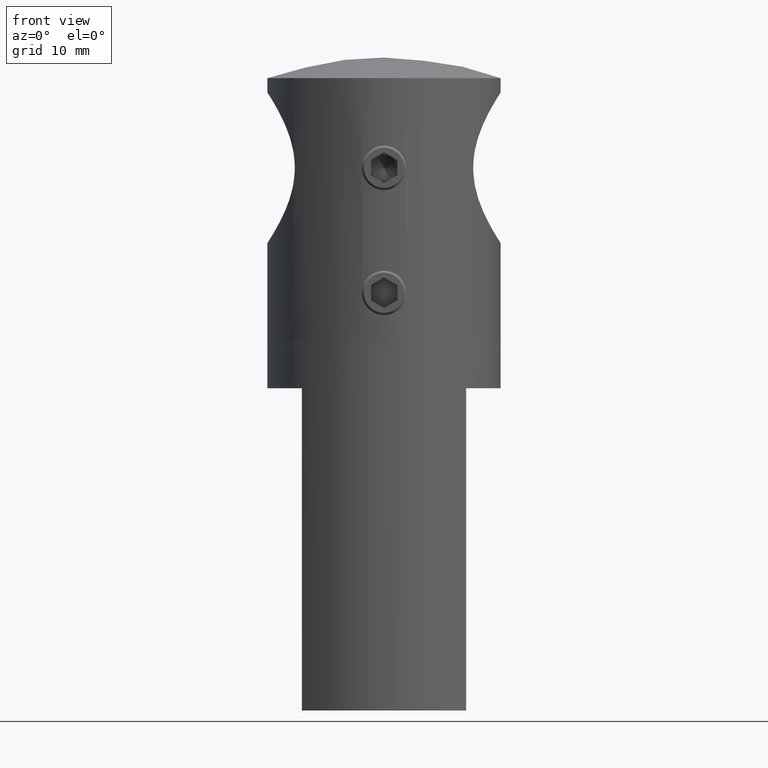
[diagram: clean part render]
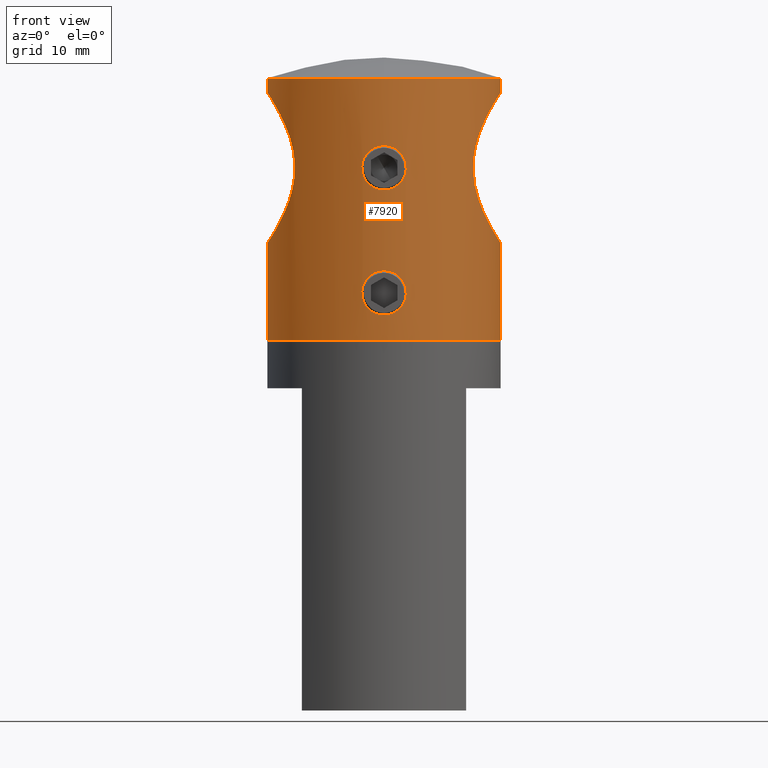
[diagram: same view with one face highlighted and labeled with its STEP entity id]
A machine part, front view. The second image highlights one B-rep face of the part: STEP entity #7920.
In plain terms, the highlighted cylindrical surface (partial cylindrical patch) has radius 11 mm, axis along (0, 0, 1).
Its self-contained STEP definition (entity closure, byte-faithful):
#4 = CARTESIAN_POINT ( 'NONE',  ( 9.618624477816201335, -5.348775577006771087, -1.740722538128044672 ) ) ;
#57 = CARTESIAN_POINT ( 'NONE',  ( 8.974931398539803595, -6.363982882210717840, 6.131617584053833170 ) ) ;
#92 = CARTESIAN_POINT ( 'NONE',  ( 11.00000000000000000, 0.000000000000000000, 13.34999999999999964 ) ) ;
#113 = CARTESIAN_POINT ( 'NONE',  ( 10.39380994311524553, -3.607487159642616792, 9.069572795649069263 ) ) ;
#133 = CARTESIAN_POINT ( 'NONE',  ( -8.401395920298458719, -7.100461038558920635, 2.480575268732210237 ) ) ;
#453 = CARTESIAN_POINT ( 'NONE',  ( -1.347111479062088602E-15, -11.00000000000000000, 11.40899998344316124 ) ) ;
#563 = CARTESIAN_POINT ( 'NONE',  ( 0.000000000000000000, 0.000000000000000000, 11.40899998344315946 ) ) ;
#666 = ORIENTED_EDGE ( 'NONE', *, *, #14136, .T. ) ;
#697 = ORIENTED_EDGE ( 'NONE', *, *, #10156, .F. ) ;
#698 = CARTESIAN_POINT ( 'NONE',  ( 1.821537117031364561, -10.84840705170788766, 4.003903109963400375 ) ) ;
#909 = CARTESIAN_POINT ( 'NONE',  ( 2.086544399319953946, -10.80032733427251301, -9.124117914040203559 ) ) ;
#1026 = CARTESIAN_POINT ( 'NONE',  ( 2.099852312276103472, -10.79771366026968415, -8.571537326236922993 ) ) ;
#1046 = AXIS2_PLACEMENT_3D ( 'NONE', #6387, #4910, #8809 ) ;
#1101 = CARTESIAN_POINT ( 'NONE',  ( -1.280964861485028194, -10.92576216311739223, 1.280287698541706209 ) ) ;
#1255 = CARTESIAN_POINT ( 'NONE',  ( -0.5446589775677495027, -10.98733100277329910, 0.9172348009270533398 ) ) ;
#1261 = CARTESIAN_POINT ( 'NONE',  ( 8.442630690861324894, -7.052444570720942885, 3.898411085082026606 ) ) ;
#1311 = CARTESIAN_POINT ( 'NONE',  ( 9.616002296458887599, -5.353745576237064263, 7.635526583866741213 ) ) ;
#1315 = VERTEX_POINT ( 'NONE', #13797 ) ;
#1366 = CARTESIAN_POINT ( 'NONE',  ( 9.129417169663545550, -6.143529132884216537, 6.537657775010733197 ) ) ;
#1404 = DIRECTION ( 'NONE',  ( -0.000000000000000000, -0.000000000000000000, 1.000000000000000000 ) ) ;
#1604 = CARTESIAN_POINT ( 'NONE',  ( 0.000000000000000000, 0.000000000000000000, 11.40899998344315946 ) ) ;
#1621 = CARTESIAN_POINT ( 'NONE',  ( -10.52575241710548859, -3.202216625068708300, -3.391089961993354329 ) ) ;
#1652 = CARTESIAN_POINT ( 'NONE',  ( 10.93731957707322699, -1.195986482285178898, 9.952594027835869994 ) ) ;
#1836 = CARTESIAN_POINT ( 'NONE',  ( -10.32239293031569893, -3.806475483660659798, -3.047740651979198745 ) ) ;
#1940 = EDGE_CURVE ( 'NONE', #1315, #4395, #2028, .T. ) ;
#1972 = EDGE_LOOP ( 'NONE', ( #12308, #9873 ) ) ;
#2028 = CIRCLE ( 'NONE', #1046, 10.99999999999999822 ) ;
#2104 = ORIENTED_EDGE ( 'NONE', *, *, #16732, .F. ) ;
#2132 = ORIENTED_EDGE ( 'NONE', *, *, #8147, .T. ) ;
#2202 = CARTESIAN_POINT ( 'NONE',  ( 0.6805201624990464548, -10.97965935485003186, -10.84137980455565042 ) ) ;
#2314 = CARTESIAN_POINT ( 'NONE',  ( 2.571760389900062892E-16, -11.00000000000000000, -6.750000000000007105 ) ) ;
#2399 = CARTESIAN_POINT ( 'NONE',  ( -2.100053216031374959, -10.79767458728002794, 3.086506065059753556 ) ) ;
#2433 = CARTESIAN_POINT ( 'NONE',  ( 1.886162589979819337, -10.83721750847613130, -7.916506630239598330 ) ) ;
#2462 = CARTESIAN_POINT ( 'NONE',  ( -0.1390956088270639268, -11.00000000000000355, 0.8500000000000096367 ) ) ;
#2520 = CARTESIAN_POINT ( 'NONE',  ( 10.53307072462165728, -3.201624537633624978, -3.404223964451839279 ) ) ;
#2578 = CARTESIAN_POINT ( 'NONE',  ( 10.84708644371761288, -1.886754462171442714, -3.911095464105312391 ) ) ;
#2608 = CARTESIAN_POINT ( 'NONE',  ( 1.992617978944655199, -10.81814800521910946, 2.272995301701041360 ) ) ;
#2637 = VERTEX_POINT ( 'NONE', #2314 ) ;
#2638 = CARTESIAN_POINT ( 'NONE',  ( 8.412743936715996185, -7.087084310408757304, 2.459628915191882204 ) ) ;
#2655 = CARTESIAN_POINT ( 'NONE',  ( -1.678491383517868085, -10.87293373824765830, -10.14126275157735968 ) ) ;
#2685 = CARTESIAN_POINT ( 'NONE',  ( 8.979283315825179912, -6.357838222277258922, -0.2435410804395544970 ) ) ;
#2706 = CARTESIAN_POINT ( 'NONE',  ( -10.32472976803014930, -3.800110672842702986, 8.951753332510669736 ) ) ;
#2707 = CARTESIAN_POINT ( 'NONE',  ( -2.099893092055966193, -10.79770572917052718, -9.125460824406994575 ) ) ;
#2754 = CARTESIAN_POINT ( 'NONE',  ( -8.443597084180385792, -7.051281678532665964, 1.994352074215531401 ) ) ;
#2938 = CARTESIAN_POINT ( 'NONE',  ( -10.96809102140170111, -0.9617749170238371059, -4.100854930168572388 ) ) ;
#2991 = CARTESIAN_POINT ( 'NONE',  ( -8.776862255579368721, -6.631681787917126591, 0.4035639609908138192 ) ) ;
#3044 = B_SPLINE_CURVE_WITH_KNOTS ( 'NONE', 3,
 ( #4191, #10597, #13502, #11917, #9356, #5458, #10709, #8143, #5523, #8028, #2706, #7922, #3958, #13272, #9305, #5287, #13379, #6644, #7970, #13325, #14661, #6700, #16000, #133, #2754, #12035, #4486, #12276, #2991, #8268, #8210, #10872, #4310, #6883, #9784, #1836, #9542, #1621, #12456, #13672, #9666, #13615, #14908, #2938, #5821, #5703 ),
 .UNSPECIFIED., .F., .F.,
 ( 4, 2, 2, 2, 2, 2, 2, 2, 2, 2, 2, 2, 2, 2, 2, 2, 2, 2, 2, 2, 2, 2, 4 ),
 ( 0.02288581673804612054, 0.02359992896935396781, 0.02431404120066181507, 0.02574226566327750612, 0.02645637789458535338, 0.02717049012589320064, 0.02788460235720104791, 0.02859871458850889517, 0.03002693905112459316, 0.03145516351374029462, 0.03288338797635599609, 0.03431161243897169755, 0.03573983690158739901, 0.03645394913289524974, 0.03716806136420310047, 0.03859628582681880193, 0.04002451028943450340, 0.04145273475205020486, 0.04216684698335804865, 0.04288095921466589938, 0.04359507144597375011, 0.04430918367728160084, 0.04573740813989730231 ),
 .UNSPECIFIED. ) ;
#3160 = LINE ( 'NONE', #8526, #14180 ) ;
#3351 = CARTESIAN_POINT ( 'NONE',  ( 2.571760389900062892E-16, -11.00000000000000000, 5.049999999999996270 ) ) ;
#3461 = EDGE_CURVE ( 'NONE', #4395, #17034, #3160, .T. ) ;
#3467 = VERTEX_POINT ( 'NONE', #15623 ) ;
#3501 = CARTESIAN_POINT ( 'NONE',  ( -2.362977988588258427E-16, -11.00000000000000000, -10.94999999999999396 ) ) ;
#3504 = CARTESIAN_POINT ( 'NONE',  ( 1.669436658925245176, -10.87285216813439348, -7.568715302616171314 ) ) ;
#3588 = CARTESIAN_POINT ( 'NONE',  ( -0.1372272541832250670, -10.99999999999999822, 5.049999999999997158 ) ) ;
#3616 = CARTESIAN_POINT ( 'NONE',  ( 1.823074656995022469, -10.84815027761956152, -9.901320352071532938 ) ) ;
#3686 = CARTESIAN_POINT ( 'NONE',  ( 2.033171115251354522, -10.81050198991124489, 2.406839455373666503 ) ) ;
#3703 = DIRECTION ( 'NONE',  ( -0.000000000000000000, -0.000000000000000000, 1.000000000000000000 ) ) ;
#3710 = CARTESIAN_POINT ( 'NONE',  ( -1.387184039977853223, -10.91262725146888002, 4.532652967527634580 ) ) ;
#3745 = CARTESIAN_POINT ( 'NONE',  ( 0.2763455751302169583, -10.99736469940980932, 0.8636779842611002067 ) ) ;
#3757 = VERTEX_POINT ( 'NONE', #11725 ) ;
#3770 = CARTESIAN_POINT ( 'NONE',  ( -1.052913710800888802, -10.95009235298837069, 1.127863105140557654 ) ) ;
#3797 = CARTESIAN_POINT ( 'NONE',  ( -1.281464611760895655, -10.92569898063905320, -7.180710176465953332 ) ) ;
#3812 = VECTOR ( 'NONE', #7942, 1000.000000000000000 ) ;
#3836 = CARTESIAN_POINT ( 'NONE',  ( 10.10423413395051107, -4.367072611774283075, -2.666970970561548970 ) ) ;
#3908 = CARTESIAN_POINT ( 'NONE',  ( -0.5464674534888682711, -10.98724733397126130, -6.817684681884775166 ) ) ;
#3958 = CARTESIAN_POINT ( 'NONE',  ( -10.10150593543633057, -4.358483782773000748, 8.559384914093561392 ) ) ;
#3971 = EDGE_CURVE ( 'NONE', #17034, #6548, #9528, .T. ) ;
#4191 = CARTESIAN_POINT ( 'NONE',  ( -11.00000000000000000, 1.347003868691084210E-15, 10.05000000000000426 ) ) ;
#4229 = DIRECTION ( 'NONE',  ( -0.000000000000000000, -0.000000000000000000, 1.000000000000000000 ) ) ;
#4310 = CARTESIAN_POINT ( 'NONE',  ( -9.616035461838839282, -5.353436411750736035, -1.735446169069210898 ) ) ;
#4395 = VERTEX_POINT ( 'NONE', #16262 ) ;
#4486 = CARTESIAN_POINT ( 'NONE',  ( -8.606495603050264620, -6.850983868871864502, 1.071488891998424453 ) ) ;
#4728 = ORIENTED_EDGE ( 'NONE', *, *, #12679, .T. ) ;
#4745 = VERTEX_POINT ( 'NONE', #3501 ) ;
#4771 = CARTESIAN_POINT ( 'NONE',  ( 2.571760389900062892E-16, -11.00000000000000000, -6.750000000000007105 ) ) ;
#4910 = DIRECTION ( 'NONE',  ( -0.000000000000000000, -0.000000000000000000, 1.000000000000000000 ) ) ;
#4921 = B_SPLINE_CURVE_WITH_KNOTS ( 'NONE', 3,
 ( #17105, #15952, #13100, #5123, #13274, #14605, #9135, #6421, #17157, #2655, #10479, #13044, #2707, #5062, #6646, #10654, #15724, #6531, #7972, #14373, #11747, #10599, #3797, #14547, #9252, #11864, #3908, #11978, #7759, #13218 ),
 .UNSPECIFIED., .F., .F.,
 ( 4, 2, 2, 2, 2, 2, 2, 2, 2, 2, 2, 2, 2, 2, 4 ),
 ( 2.823141662739470017E-19, 0.0004112924916772679696, 0.0008225849833545358309, 0.001233877475031803801, 0.001645169966709071662, 0.002467754950063607601, 0.003290339933418143323, 0.003701632425095408366, 0.004112924916772673842, 0.004524217408449939318, 0.004935509900127204794, 0.005346802391804470270, 0.005758094883481735746, 0.006169387375159001222, 0.006580679866836266698 ),
 .UNSPECIFIED. ) ;
#4948 = CARTESIAN_POINT ( 'NONE',  ( -11.00000000000000000, 1.347111479062088405E-15, 11.40899998344315946 ) ) ;
#4973 = CARTESIAN_POINT ( 'NONE',  ( -0.6782223692844864260, -10.97981120730159255, 0.9577771028039815393 ) ) ;
#5001 = CARTESIAN_POINT ( 'NONE',  ( 0.5512897161058580853, -10.98910036636056553, -6.805259910810680601 ) ) ;
#5007 = CARTESIAN_POINT ( 'NONE',  ( 1.823074656995022025, -10.84815027761955974, 1.898679647928469105 ) ) ;
#5033 = CARTESIAN_POINT ( 'NONE',  ( -1.054284791542651423, -10.94995586041581070, 4.771308223358065703 ) ) ;
#5062 = CARTESIAN_POINT ( 'NONE',  ( -2.100053216031374959, -10.79767458728002616, -8.713493934940252927 ) ) ;
#5068 = CARTESIAN_POINT ( 'NONE',  ( 0.1390600104966670247, -11.00000000000000355, 0.8500000000000098588 ) ) ;
#5123 = CARTESIAN_POINT ( 'NONE',  ( -0.5446589775677500578, -10.98733100277329555, -10.88276519907294571 ) ) ;
#5148 = CARTESIAN_POINT ( 'NONE',  ( -0.9313145936048172757, -10.96124348274782889, 4.837205184321649476 ) ) ;
#5154 = CARTESIAN_POINT ( 'NONE',  ( 8.600628163531990111, -6.858884507550863319, 1.055644347648836190 ) ) ;
#5287 = CARTESIAN_POINT ( 'NONE',  ( -9.615757203055357749, -5.354006948956338441, 7.634920387581043855 ) ) ;
#5323 = CARTESIAN_POINT ( 'NONE',  ( 8.715072871429502044, -6.712320979507743424, 5.275840141762283331 ) ) ;
#5458 = CARTESIAN_POINT ( 'NONE',  ( -10.84607314739752049, -1.893529277578472003, 9.809501551777522366 ) ) ;
#5523 = CARTESIAN_POINT ( 'NONE',  ( -10.52670800807837637, -3.199048539657768586, 9.292672148448730240 ) ) ;
#5703 = CARTESIAN_POINT ( 'NONE',  ( -11.00000000000000000, -2.600742020527134374E-16, -4.149999999999996803 ) ) ;
#5704 = LINE ( 'NONE', #92, #10493 ) ;
#5770 = VERTEX_POINT ( 'NONE', #453 ) ;
#5807 = CARTESIAN_POINT ( 'NONE',  ( 2.571760389900062892E-16, -11.00000000000000000, 5.049999999999996270 ) ) ;
#5821 = CARTESIAN_POINT ( 'NONE',  ( -11.00000000000000355, -0.4837421286456314862, -4.149999999999998579 ) ) ;
#5924 = CARTESIAN_POINT ( 'NONE',  ( 0.9304780754643300344, -10.96130796731566015, 4.837572818975671929 ) ) ;
#6126 = CARTESIAN_POINT ( 'NONE',  ( 1.580893697814894416, -10.88624481241956587, -7.460932840332700877 ) ) ;
#6141 = LINE ( 'NONE', #12125, #15513 ) ;
#6191 = CARTESIAN_POINT ( 'NONE',  ( 2.044985657725164607, -10.80877440911514853, -8.298537935482235284 ) ) ;
#6207 = FACE_OUTER_BOUND ( 'NONE', #7282, .T. ) ;
#6307 = CARTESIAN_POINT ( 'NONE',  ( 1.582363275506016631, -10.88602800881645827, -10.23735848235642543 ) ) ;
#6332 = CARTESIAN_POINT ( 'NONE',  ( -1.669681883603846284, -10.87281380345939041, 4.230948821869228382 ) ) ;
#6366 = CARTESIAN_POINT ( 'NONE',  ( 1.387222290316447948, -10.91261496237138751, -7.267487195910812048 ) ) ;
#6371 = CARTESIAN_POINT ( 'NONE',  ( 1.059293483344628584, -10.95180379100163393, 1.116232788388055841 ) ) ;
#6387 = CARTESIAN_POINT ( 'NONE',  ( 0.000000000000000000, 0.000000000000000000, -13.34999999999999964 ) ) ;
#6421 = CARTESIAN_POINT ( 'NONE',  ( -1.280964861485029527, -10.92576216311739046, -10.51971230145830027 ) ) ;
#6503 = CARTESIAN_POINT ( 'NONE',  ( -1.388683799784667494, -10.91242698277668133, 1.368788278327566443 ) ) ;
#6510 = CARTESIAN_POINT ( 'NONE',  ( 8.453846490142611358, -7.038004268874612279, 1.983706186007275107 ) ) ;
#6531 = CARTESIAN_POINT ( 'NONE',  ( -1.887222682679247754, -10.83703208814377028, -7.918663948588950063 ) ) ;
#6548 = VERTEX_POINT ( 'NONE', #16310 ) ;
#6623 = CARTESIAN_POINT ( 'NONE',  ( 9.945067796824554662, -4.714123835347594493, -2.378162400668189846 ) ) ;
#6644 = CARTESIAN_POINT ( 'NONE',  ( -9.130304730956144255, -6.142195407637386140, 6.539864414270356363 ) ) ;
#6646 = CARTESIAN_POINT ( 'NONE',  ( -2.086312396705570560, -10.80037267411901958, -8.573968802188863592 ) ) ;
#6680 = EDGE_CURVE ( 'NONE', #12255, #10523, #14107, .T. ) ;
#6700 = CARTESIAN_POINT ( 'NONE',  ( -8.443332468633530041, -7.051628053820479636, 3.905581076693656950 ) ) ;
#6776 = VERTEX_POINT ( 'NONE', #4948 ) ;
#6883 = CARTESIAN_POINT ( 'NONE',  ( -9.942885241981041844, -4.718734203448654796, -2.374118211977240378 ) ) ;
#6922 = CARTESIAN_POINT ( 'NONE',  ( 10.58769266743697912, -2.991742537915969002, 9.393172667929700737 ) ) ;
#7030 = CARTESIAN_POINT ( 'NONE',  ( 11.00000000000000000, 1.076104219691452343E-19, 10.05000000000000426 ) ) ;
#7143 = CIRCLE ( 'NONE', #9095, 11.00000000000000000 ) ;
#7207 = CARTESIAN_POINT ( 'NONE',  ( 0.5512897161058575302, -10.98910036636056731, 4.994740089189320997 ) ) ;
#7260 = CARTESIAN_POINT ( 'NONE',  ( 1.281726110789820350, -10.92567622053587151, 4.619161128042578390 ) ) ;
#7282 = EDGE_LOOP ( 'NONE', ( #9105, #8922, #12102, #15797, #4728, #697, #2104, #13027, #2132 ) ) ;
#7347 = AXIS2_PLACEMENT_3D ( 'NONE', #1604, #4229, #14950 ) ;
#7470 = CARTESIAN_POINT ( 'NONE',  ( 1.053044886988720785, -10.95008306658220043, -7.027908575170917160 ) ) ;
#7591 = CARTESIAN_POINT ( 'NONE',  ( 1.281726110789821016, -10.92567622053587151, -7.180838871957424985 ) ) ;
#7623 = CARTESIAN_POINT ( 'NONE',  ( -0.2766146211369606700, -10.99735036301719404, 5.036244612058148995 ) ) ;
#7647 = CARTESIAN_POINT ( 'NONE',  ( 2.100073399048833611, -10.79767066196426839, -8.987557323033358969 ) ) ;
#7653 = CARTESIAN_POINT ( 'NONE',  ( 2.099852312276103916, -10.79771366026968593, 3.228462673763080382 ) ) ;
#7759 = CARTESIAN_POINT ( 'NONE',  ( -0.1372272541832249559, -11.00000000000000178, -6.750000000000007105 ) ) ;
#7899 = CARTESIAN_POINT ( 'NONE',  ( 9.130374757092061699, -6.142080975597357551, -0.6400208882153017864 ) ) ;
#7920 = ADVANCED_FACE ( 'NONE', ( #6207, #12015, #14730 ), #8490, .T. ) ;
#7922 = CARTESIAN_POINT ( 'NONE',  ( -10.17809414954137814, -4.176994779955133019, 8.695833168338905850 ) ) ;
#7942 = DIRECTION ( 'NONE',  ( -0.000000000000000000, -0.000000000000000000, 1.000000000000000000 ) ) ;
#7970 = CARTESIAN_POINT ( 'NONE',  ( -8.975770888038764994, -6.362779008328995012, 6.133770479453402480 ) ) ;
#7972 = CARTESIAN_POINT ( 'NONE',  ( -1.821584086453984064, -10.84839845383223711, -7.796197887333372378 ) ) ;
#8008 = CARTESIAN_POINT ( 'NONE',  ( 8.558781598506170596, -6.910210156023721240, 4.597910829485651441 ) ) ;
#8028 = CARTESIAN_POINT ( 'NONE',  ( -10.39478236017299828, -3.604718120888807942, 9.071226087209128153 ) ) ;
#8052 = CARTESIAN_POINT ( 'NONE',  ( -11.00000000000000000, 1.347111479062088405E-15, 13.34999999999999964 ) ) ;
#8143 = CARTESIAN_POINT ( 'NONE',  ( -10.58881885139752121, -2.987707908590936157, 9.395019652354941186 ) ) ;
#8147 = EDGE_CURVE ( 'NONE', #15239, #3467, #3044, .T. ) ;
#8177 = DIRECTION ( 'NONE',  ( -0.000000000000000000, -0.000000000000000000, 1.000000000000000000 ) ) ;
#8210 = CARTESIAN_POINT ( 'NONE',  ( -9.127971041129400831, -6.145627881455133057, -0.6339189038262011966 ) ) ;
#8268 = CARTESIAN_POINT ( 'NONE',  ( -8.976446890868427175, -6.361875413259864942, -0.2360164114432382054 ) ) ;
#8294 = CARTESIAN_POINT ( 'NONE',  ( 1.033756478894157726E-16, -11.00000000000000000, 0.8500000000000094147 ) ) ;
#8340 = DIRECTION ( 'NONE',  ( -0.000000000000000000, -0.000000000000000000, 1.000000000000000000 ) ) ;
#8490 = CYLINDRICAL_SURFACE ( 'NONE', #11373, 11.00000000000000000 ) ;
#8526 = CARTESIAN_POINT ( 'NONE',  ( 11.00000000000000000, 0.000000000000000000, 13.34999999999999964 ) ) ;
#8534 = CARTESIAN_POINT ( 'NONE',  ( 1.053044886988720119, -10.95008306658220221, 4.772091424829087103 ) ) ;
#8591 = CARTESIAN_POINT ( 'NONE',  ( 1.669436658925246952, -10.87285216813439526, 4.231284697383829396 ) ) ;
#8788 = CARTESIAN_POINT ( 'NONE',  ( 1.821537117031363229, -10.84840705170788588, -7.796096890036602112 ) ) ;
#8809 = DIRECTION ( 'NONE',  ( 1.000000000000000000, 0.000000000000000000, 0.000000000000000000 ) ) ;
#8922 = ORIENTED_EDGE ( 'NONE', *, *, #1940, .T. ) ;
#8958 = CARTESIAN_POINT ( 'NONE',  ( 1.059293483344629250, -10.95180379100163215, -10.68376721161194887 ) ) ;
#8965 = CARTESIAN_POINT ( 'NONE',  ( 0.6805201624990456777, -10.97965935485003186, 0.9586201954443488438 ) ) ;
#8991 = CARTESIAN_POINT ( 'NONE',  ( 1.033756478894157726E-16, -11.00000000000000000, 0.8500000000000094147 ) ) ;
#9020 = CARTESIAN_POINT ( 'NONE',  ( 0.9304780754643304785, -10.96130796731565660, -6.962427181024332334 ) ) ;
#9028 = CARTESIAN_POINT ( 'NONE',  ( 0.5474279575042518831, -10.98720709917046179, 0.9179003317766127878 ) ) ;
#9095 = AXIS2_PLACEMENT_3D ( 'NONE', #563, #8340, #16258 ) ;
#9105 = ORIENTED_EDGE ( 'NONE', *, *, #12029, .F. ) ;
#9135 = CARTESIAN_POINT ( 'NONE',  ( -1.052913710800889469, -10.95009235298837069, -10.67213689485944528 ) ) ;
#9141 = CARTESIAN_POINT ( 'NONE',  ( 2.100073399048834055, -10.79767066196427017, 2.812442676966646182 ) ) ;
#9222 = CARTESIAN_POINT ( 'NONE',  ( 8.606538236366738204, -6.850930423834669547, 4.828706370018758243 ) ) ;
#9252 = CARTESIAN_POINT ( 'NONE',  ( -0.9313145936048171647, -10.96124348274783245, -6.962794815678355675 ) ) ;
#9305 = CARTESIAN_POINT ( 'NONE',  ( -9.861603752338668372, -4.876557769703527612, 8.115283310778369952 ) ) ;
#9336 = CARTESIAN_POINT ( 'NONE',  ( 9.449343857318062589, -5.639069846216668402, 7.287641039399408882 ) ) ;
#9356 = CARTESIAN_POINT ( 'NONE',  ( -10.93782023536322079, -1.191544149335223679, 9.953376057742175931 ) ) ;
#9396 = CARTESIAN_POINT ( 'NONE',  ( 10.75628781949875012, -2.344834943863306265, -3.767760858830070170 ) ) ;
#9458 = CARTESIAN_POINT ( 'NONE',  ( 10.96096262931236787, -0.9564599396693918010, 9.989392560758147965 ) ) ;
#9525 = CARTESIAN_POINT ( 'NONE',  ( 11.00000000000000000, -0.2387790642552299336, 10.05000000000000426 ) ) ;
#9528 = B_SPLINE_CURVE_WITH_KNOTS ( 'NONE', 3,
 ( #13132, #13359, #10515, #2578, #9396, #2520, #14524, #3836, #6623, #4, #15871, #7899, #2685, #11777, #5154, #14472, #6510, #2638, #15811, #17136, #1261, #8008, #9222, #5323, #15986, #57, #1366, #9336, #1311, #10575, #11896, #14643, #113, #14883, #6922, #13592, #9584, #1652, #9458, #14947, #9525, #7030 ),
 .UNSPECIFIED., .F., .F.,
 ( 4, 2, 2, 2, 2, 2, 2, 2, 2, 2, 2, 2, 2, 2, 2, 2, 2, 2, 2, 2, 4 ),
 ( 2.518951915932314154E-19, 0.001430363546127882100, 0.002860727092255764201, 0.004291090638383645434, 0.005721454184511529269, 0.007151817730639410502, 0.008582181276767292602, 0.01001254482289517383, 0.01072772659595911705, 0.01144290836902305854, 0.01287327191515094324, 0.01358845368821488472, 0.01430363546127882274, 0.01573399900740670571, 0.01716436255353458867, 0.01859472609966246817, 0.01930990787272640966, 0.02002508964579034767, 0.02145545319191823411, 0.02217063496498217559, 0.02288581673804612054 ),
 .UNSPECIFIED. ) ;
#9542 = CARTESIAN_POINT ( 'NONE',  ( -10.39345552336475542, -3.608564471352442737, -3.168976685365959334 ) ) ;
#9584 = CARTESIAN_POINT ( 'NONE',  ( 10.84562008106580322, -1.895757854931589659, 9.808784826296198744 ) ) ;
#9631 = EDGE_LOOP ( 'NONE', ( #12163, #666 ) ) ;
#9666 = CARTESIAN_POINT ( 'NONE',  ( -10.74909639000340000, -2.347216804563205361, -3.754929426525466685 ) ) ;
#9784 = CARTESIAN_POINT ( 'NONE',  ( -10.10162466040127960, -4.372800576579909837, -2.662237455945417608 ) ) ;
#9873 = ORIENTED_EDGE ( 'NONE', *, *, #6680, .T. ) ;
#9912 = CIRCLE ( 'NONE', #7347, 11.00000000000000000 ) ;
#9935 = CARTESIAN_POINT ( 'NONE',  ( 1.886162589979820670, -10.83721750847613308, 3.883493369760401048 ) ) ;
#10140 = CARTESIAN_POINT ( 'NONE',  ( 1.887471627070406832, -10.83698775166991801, -9.780759167849852886 ) ) ;
#10156 = EDGE_CURVE ( 'NONE', #5770, #3757, #9912, .T. ) ;
#10255 = CARTESIAN_POINT ( 'NONE',  ( 1.992617978944654755, -10.81814800521910769, -9.527004698298963348 ) ) ;
#10273 = DIRECTION ( 'NONE',  ( -0.000000000000000000, -0.000000000000000000, 1.000000000000000000 ) ) ;
#10337 = CARTESIAN_POINT ( 'NONE',  ( 0.000000000000000000, 0.000000000000000000, 13.34999999999999964 ) ) ;
#10344 = CARTESIAN_POINT ( 'NONE',  ( -0.9324088270258900080, -10.96115201561714336, 1.063322647193176040 ) ) ;
#10377 = CARTESIAN_POINT ( 'NONE',  ( 2.086544399319952170, -10.80032733427250946, 2.675882085959798040 ) ) ;
#10403 = CARTESIAN_POINT ( 'NONE',  ( -1.678491383517867419, -10.87293373824765652, 1.658737248422646360 ) ) ;
#10479 = CARTESIAN_POINT ( 'NONE',  ( -1.834825977199898484, -10.84641652567069059, -9.907448185350292036 ) ) ;
#10493 = VECTOR ( 'NONE', #1404, 1000.000000000000000 ) ;
#10515 = CARTESIAN_POINT ( 'NONE',  ( 10.96816309321517835, -0.9583971403540449963, -4.100953714885069878 ) ) ;
#10523 = VERTEX_POINT ( 'NONE', #8294 ) ;
#10575 = CARTESIAN_POINT ( 'NONE',  ( 9.946061679111865672, -4.712318849131812648, 8.280178432971723623 ) ) ;
#10597 = CARTESIAN_POINT ( 'NONE',  ( -11.00000000000000178, -0.2384219743665853819, 10.05000000000000426 ) ) ;
#10599 = CARTESIAN_POINT ( 'NONE',  ( -1.387184039977853667, -10.91262725146888357, -7.267347032472368795 ) ) ;
#10654 = CARTESIAN_POINT ( 'NONE',  ( -2.032533148121902666, -10.81062247598581649, -8.304379581945411815 ) ) ;
#10709 = CARTESIAN_POINT ( 'NONE',  ( -10.75701646858611937, -2.341907247019044735, 9.668941725565932899 ) ) ;
#10798 = CARTESIAN_POINT ( 'NONE',  ( -11.00000000000000000, 1.347003868691084210E-15, 10.05000000000000426 ) ) ;
#10872 = CARTESIAN_POINT ( 'NONE',  ( -9.446963994808660559, -5.643001742495250994, -1.382406733066165128 ) ) ;
#11168 = B_SPLINE_CURVE_WITH_KNOTS ( 'NONE', 3,
 ( #8991, #2462, #11770, #1255, #4973, #10344, #3770, #1101, #6503, #10403, #15808, #15688, #13127, #2399, #11599, #14342, #11550, #11714, #16974, #6332, #14236, #3710, #14286, #5033, #5148, #14402, #15751, #7623, #3588, #12901 ),
 .UNSPECIFIED., .F., .F.,
 ( 4, 2, 2, 2, 2, 2, 2, 2, 2, 2, 2, 2, 2, 2, 4 ),
 ( 8.315904539909094022E-20, 0.0004112924916772664518, 0.0008225849833545327951, 0.001233877475031799030, 0.001645169966709065373, 0.002467754950063598060, 0.003290339933418129879, 0.003701632425095397090, 0.004112924916772663433, 0.004524217408449929777, 0.004935509900127196120, 0.005346802391804462463, 0.005758094883481728807, 0.006169387375158995150, 0.006580679866836261493 ),
 .UNSPECIFIED. ) ;
#11373 = AXIS2_PLACEMENT_3D ( 'NONE', #10337, #3703, #17162 ) ;
#11462 = CARTESIAN_POINT ( 'NONE',  ( 0.5474279575042542145, -10.98720709917046179, -10.88209966822339148 ) ) ;
#11550 = CARTESIAN_POINT ( 'NONE',  ( -1.992760222116806812, -10.81812278681591799, 3.626685297480270798 ) ) ;
#11565 = CARTESIAN_POINT ( 'NONE',  ( 11.00000000000000000, 2.600742020527134374E-16, -4.149999999999996803 ) ) ;
#11599 = CARTESIAN_POINT ( 'NONE',  ( -2.086312396705570560, -10.80037267411901958, 3.226031197811143336 ) ) ;
#11630 = CARTESIAN_POINT ( 'NONE',  ( 1.292954605772749010, -10.92548331951668672, -10.52714542135050202 ) ) ;
#11692 = CARTESIAN_POINT ( 'NONE',  ( 1.887471627070406610, -10.83698775166992156, 2.019240832150154485 ) ) ;
#11702 = EDGE_CURVE ( 'NONE', #10523, #12255, #11168, .T. ) ;
#11714 = CARTESIAN_POINT ( 'NONE',  ( -1.887222682679247532, -10.83703208814377028, 3.881336051411053756 ) ) ;
#11725 = CARTESIAN_POINT ( 'NONE',  ( 11.00000000000000000, 0.000000000000000000, 11.40899998344315946 ) ) ;
#11747 = CARTESIAN_POINT ( 'NONE',  ( -1.582490036305443049, -10.88602031852158092, -7.462630092085285050 ) ) ;
#11770 = CARTESIAN_POINT ( 'NONE',  ( -0.2758036406991116185, -10.99736460785608472, 0.8636826444223933974 ) ) ;
#11777 = CARTESIAN_POINT ( 'NONE',  ( 8.714485533492817737, -6.716202618522651768, 0.6019297540205120756 ) ) ;
#11864 = CARTESIAN_POINT ( 'NONE',  ( -0.6773940598820478165, -10.97986078454456482, -6.857507197596858894 ) ) ;
#11896 = CARTESIAN_POINT ( 'NONE',  ( 10.10487056211743528, -4.365059397495767435, 8.568012804768532220 ) ) ;
#11917 = CARTESIAN_POINT ( 'NONE',  ( -10.96128869548732254, -0.9523554537449743229, 9.989899788292282423 ) ) ;
#11978 = CARTESIAN_POINT ( 'NONE',  ( -0.2766146211369604480, -10.99735036301719759, -6.763755387941854380 ) ) ;
#12015 = FACE_BOUND ( 'NONE', #9631, .T. ) ;
#12029 = EDGE_CURVE ( 'NONE', #1315, #3467, #6141, .T. ) ;
#12035 = CARTESIAN_POINT ( 'NONE',  ( -8.559413198503012410, -6.909426311553657385, 1.299004205872507089 ) ) ;
#12102 = ORIENTED_EDGE ( 'NONE', *, *, #3461, .T. ) ;
#12125 = CARTESIAN_POINT ( 'NONE',  ( -11.00000000000000000, 1.347111479062088405E-15, 13.34999999999999964 ) ) ;
#12163 = ORIENTED_EDGE ( 'NONE', *, *, #14191, .T. ) ;
#12255 = VERTEX_POINT ( 'NONE', #3351 ) ;
#12276 = CARTESIAN_POINT ( 'NONE',  ( -8.715020357875063794, -6.712389045540278154, 0.6243565931685388648 ) ) ;
#12308 = ORIENTED_EDGE ( 'NONE', *, *, #11702, .T. ) ;
#12456 = CARTESIAN_POINT ( 'NONE',  ( -10.58705507182292571, -2.993838952874727344, -3.492118531316837249 ) ) ;
#12561 = LINE ( 'NONE', #8052, #3812 ) ;
#12679 = EDGE_CURVE ( 'NONE', #6548, #3757, #5704, .T. ) ;
#12827 = CARTESIAN_POINT ( 'NONE',  ( 0.2763455751302186791, -10.99736469940980932, -10.93632201573890406 ) ) ;
#12901 = CARTESIAN_POINT ( 'NONE',  ( 2.571760389900062892E-16, -11.00000000000000000, 5.049999999999996270 ) ) ;
#12927 = CARTESIAN_POINT ( 'NONE',  ( 0.1390600104966671358, -11.00000000000000000, -10.94999999999999574 ) ) ;
#12933 = CARTESIAN_POINT ( 'NONE',  ( 1.582363275506015521, -10.88602800881645649, 1.562641517643576172 ) ) ;
#13027 = ORIENTED_EDGE ( 'NONE', *, *, #15520, .F. ) ;
#13044 = CARTESIAN_POINT ( 'NONE',  ( -2.044447484799326364, -10.80886544910461744, -9.402283906343367192 ) ) ;
#13100 = CARTESIAN_POINT ( 'NONE',  ( -0.2758036406991117850, -10.99736460785608472, -10.93631735557761253 ) ) ;
#13127 = CARTESIAN_POINT ( 'NONE',  ( -2.099893092055965305, -10.79770572917052718, 2.674539175593007911 ) ) ;
#13132 = CARTESIAN_POINT ( 'NONE',  ( 11.00000000000000000, 2.600742020527134374E-16, -4.149999999999996803 ) ) ;
#13218 = CARTESIAN_POINT ( 'NONE',  ( 2.571760389900062892E-16, -11.00000000000000000, -6.750000000000007105 ) ) ;
#13272 = CARTESIAN_POINT ( 'NONE',  ( -9.943384263157289737, -4.708068865633418199, 8.269367213833703545 ) ) ;
#13274 = CARTESIAN_POINT ( 'NONE',  ( -0.6782223692844863150, -10.97981120730159610, -10.84222289719602550 ) ) ;
#13325 = CARTESIAN_POINT ( 'NONE',  ( -8.711368628945653114, -6.720228891490071632, 5.286637503048607023 ) ) ;
#13359 = CARTESIAN_POINT ( 'NONE',  ( 10.99999999999999645, -0.4844666399802446399, -4.149999999999996803 ) ) ;
#13379 = CARTESIAN_POINT ( 'NONE',  ( -9.449850365635468208, -5.638205119789543751, 7.288701875633470273 ) ) ;
#13502 = CARTESIAN_POINT ( 'NONE',  ( -10.99225655162032922, -0.4765780937641450055, 10.03802111029726341 ) ) ;
#13592 = CARTESIAN_POINT ( 'NONE',  ( 10.75656913952135696, -2.344196681124516513, 9.668238734068120621 ) ) ;
#13615 = CARTESIAN_POINT ( 'NONE',  ( -10.83751477853181377, -1.897570381912789594, -3.895782058172636120 ) ) ;
#13672 = CARTESIAN_POINT ( 'NONE',  ( -10.69872493215229170, -2.566338168617761539, -3.674037383015094527 ) ) ;
#13797 = CARTESIAN_POINT ( 'NONE',  ( -10.99999999999999822, 1.347111479062088207E-15, -13.34999999999999964 ) ) ;
#13889 = CARTESIAN_POINT ( 'NONE',  ( 0.2743842680306842197, -11.00000000000000178, 5.049999999999996270 ) ) ;
#13960 = B_SPLINE_CURVE_WITH_KNOTS ( 'NONE', 3,
 ( #4771, #14091, #5001, #9020, #7470, #7591, #6366, #6126, #3504, #8788, #2433, #6191, #1026, #7647, #909, #15660, #10255, #10140, #3616, #16998, #6307, #11630, #8958, #2202, #11462, #12827, #12927, #15499 ),
 .UNSPECIFIED., .F., .F.,
 ( 4, 2, 2, 2, 2, 2, 2, 2, 2, 2, 2, 2, 2, 4 ),
 ( 0.006580679866836266698, 0.007403054328433402928, 0.007814241559231969309, 0.008225428790030537424, 0.008636616020829103804, 0.009047803251627670185, 0.009870177713224806415, 0.01028136494402337280, 0.01069255217482194091, 0.01110373940562050729, 0.01151492663641907541, 0.01233730109801620643, 0.01274848832881477108, 0.01315967555961333572 ),
 .UNSPECIFIED. ) ;
#14091 = CARTESIAN_POINT ( 'NONE',  ( 0.2743842680306844972, -10.99999999999999822, -6.750000000000006217 ) ) ;
#14107 = B_SPLINE_CURVE_WITH_KNOTS ( 'NONE', 3,
 ( #5807, #13889, #7207, #5924, #8534, #7260, #16566, #15077, #8591, #698, #9935, #16407, #7653, #9141, #10377, #3686, #2608, #11692, #5007, #16946, #12933, #15666, #6371, #8965, #9028, #3745, #5068, #14381 ),
 .UNSPECIFIED., .F., .F.,
 ( 4, 2, 2, 2, 2, 2, 2, 2, 2, 2, 2, 2, 2, 4 ),
 ( 0.006580679866836261493, 0.007403054328433395989, 0.007814241559231962370, 0.008225428790030528750, 0.008636616020829095131, 0.009047803251627661511, 0.009870177713224794272, 0.01028136494402336065, 0.01069255217482192530, 0.01110373940562049168, 0.01151492663641905806, 0.01233730109801619082, 0.01274848832881475720, 0.01315967555961332358 ),
 .UNSPECIFIED. ) ;
#14136 = EDGE_CURVE ( 'NONE', #2637, #4745, #13960, .T. ) ;
#14180 = VECTOR ( 'NONE', #10273, 1000.000000000000000 ) ;
#14191 = EDGE_CURVE ( 'NONE', #4745, #2637, #4921, .T. ) ;
#14236 = CARTESIAN_POINT ( 'NONE',  ( -1.582490036305442604, -10.88602031852157737, 4.337369907914722766 ) ) ;
#14286 = CARTESIAN_POINT ( 'NONE',  ( -1.281464611760895433, -10.92569898063905320, 4.619289823534050043 ) ) ;
#14342 = CARTESIAN_POINT ( 'NONE',  ( -2.032533148121903110, -10.81062247598582182, 3.495620418054586676 ) ) ;
#14373 = CARTESIAN_POINT ( 'NONE',  ( -1.669681883603846728, -10.87281380345939219, -7.569051178130775881 ) ) ;
#14381 = CARTESIAN_POINT ( 'NONE',  ( 1.033756478894157726E-16, -11.00000000000000000, 0.8500000000000094147 ) ) ;
#14402 = CARTESIAN_POINT ( 'NONE',  ( -0.6773940598820479275, -10.97986078454456305, 4.942492802403144481 ) ) ;
#14472 = CARTESIAN_POINT ( 'NONE',  ( 8.484095018334604887, -7.001707441309244828, 1.749244857311118562 ) ) ;
#14524 = CARTESIAN_POINT ( 'NONE',  ( 10.40030921667203678, -3.605612129418025003, -3.183616164452566011 ) ) ;
#14547 = CARTESIAN_POINT ( 'NONE',  ( -1.054284791542651423, -10.94995586041581426, -7.028691776641940336 ) ) ;
#14605 = CARTESIAN_POINT ( 'NONE',  ( -0.9324088270258904521, -10.96115201561714159, -10.73667735280682933 ) ) ;
#14643 = CARTESIAN_POINT ( 'NONE',  ( 10.32395503813734905, -3.802169186888171293, 8.950413513153113954 ) ) ;
#14661 = CARTESIAN_POINT ( 'NONE',  ( -8.599873967107040329, -6.859846145153972508, 4.842380582329886884 ) ) ;
#14730 = FACE_BOUND ( 'NONE', #1972, .T. ) ;
#14883 = CARTESIAN_POINT ( 'NONE',  ( 10.52550988113103436, -3.202950277915759258, 9.290681692486536747 ) ) ;
#14908 = CARTESIAN_POINT ( 'NONE',  ( -10.87572446182579533, -1.665720667349795736, -3.955994947702205611 ) ) ;
#14947 = CARTESIAN_POINT ( 'NONE',  ( 10.99223366167804095, -0.4778247633253476234, 10.03798608465075048 ) ) ;
#14950 = DIRECTION ( 'NONE',  ( 1.000000000000000000, 0.000000000000000000, 0.000000000000000000 ) ) ;
#15077 = CARTESIAN_POINT ( 'NONE',  ( 1.580893697814894416, -10.88624481241956765, 4.339067159667304274 ) ) ;
#15239 = VERTEX_POINT ( 'NONE', #10798 ) ;
#15499 = CARTESIAN_POINT ( 'NONE',  ( -2.362977988588258427E-16, -11.00000000000000000, -10.94999999999999396 ) ) ;
#15513 = VECTOR ( 'NONE', #8177, 1000.000000000000000 ) ;
#15520 = EDGE_CURVE ( 'NONE', #15239, #6776, #12561, .T. ) ;
#15623 = CARTESIAN_POINT ( 'NONE',  ( -11.00000000000000000, -2.600742020527134374E-16, -4.149999999999996803 ) ) ;
#15660 = CARTESIAN_POINT ( 'NONE',  ( 2.033171115251354966, -10.81050198991124667, -9.393160544626333319 ) ) ;
#15666 = CARTESIAN_POINT ( 'NONE',  ( 1.292954605772749010, -10.92548331951668672, 1.272854578649507129 ) ) ;
#15688 = CARTESIAN_POINT ( 'NONE',  ( -2.044447484799326809, -10.80886544910462455, 2.397716093656633074 ) ) ;
#15724 = CARTESIAN_POINT ( 'NONE',  ( -1.992760222116807256, -10.81812278681591621, -8.173314702519736130 ) ) ;
#15751 = CARTESIAN_POINT ( 'NONE',  ( -0.5464674534888687152, -10.98724733397126307, 4.982315318115226432 ) ) ;
#15797 = ORIENTED_EDGE ( 'NONE', *, *, #3971, .T. ) ;
#15808 = CARTESIAN_POINT ( 'NONE',  ( -1.834825977199898039, -10.84641652567069414, 1.892551814649712671 ) ) ;
#15811 = CARTESIAN_POINT ( 'NONE',  ( 8.401972138864584494, -7.099779169744996565, 2.702918693701362507 ) ) ;
#15871 = CARTESIAN_POINT ( 'NONE',  ( 9.449696016915828167, -5.638452545124778226, -1.388347794378992139 ) ) ;
#15952 = CARTESIAN_POINT ( 'NONE',  ( -0.1390956088270638713, -11.00000000000000355, -10.94999999999999396 ) ) ;
#15986 = CARTESIAN_POINT ( 'NONE',  ( 8.776075105529141496, -6.632716161234645469, 5.493682069079120822 ) ) ;
#16000 = CARTESIAN_POINT ( 'NONE',  ( -8.402180831779730852, -7.099532212742898807, 3.433268971324419994 ) ) ;
#16258 = DIRECTION ( 'NONE',  ( 1.000000000000000000, 0.000000000000000000, 0.000000000000000000 ) ) ;
#16262 = CARTESIAN_POINT ( 'NONE',  ( 10.99999999999999822, 0.000000000000000000, -13.34999999999999964 ) ) ;
#16310 = CARTESIAN_POINT ( 'NONE',  ( 11.00000000000000000, 1.076104219691452343E-19, 10.05000000000000426 ) ) ;
#16407 = CARTESIAN_POINT ( 'NONE',  ( 2.044985657725165051, -10.80877440911515031, 3.501462064517767647 ) ) ;
#16566 = CARTESIAN_POINT ( 'NONE',  ( 1.387222290316447282, -10.91261496237138751, 4.532512804089189551 ) ) ;
#16732 = EDGE_CURVE ( 'NONE', #6776, #5770, #7143, .T. ) ;
#16946 = CARTESIAN_POINT ( 'NONE',  ( 1.670559616397230718, -10.87268118813650908, 1.670114749002842069 ) ) ;
#16974 = CARTESIAN_POINT ( 'NONE',  ( -1.821584086453983620, -10.84839845383223356, 4.003802112666631885 ) ) ;
#16998 = CARTESIAN_POINT ( 'NONE',  ( 1.670559616397231828, -10.87268118813651263, -10.12988525099716242 ) ) ;
#17034 = VERTEX_POINT ( 'NONE', #11565 ) ;
#17105 = CARTESIAN_POINT ( 'NONE',  ( -2.362977988588258427E-16, -11.00000000000000000, -10.94999999999999396 ) ) ;
#17136 = CARTESIAN_POINT ( 'NONE',  ( 8.401419675687222366, -7.100432927546194151, 3.424874684192138030 ) ) ;
#17157 = CARTESIAN_POINT ( 'NONE',  ( -1.388683799784667716, -10.91242698277668133, -10.43121172167243849 ) ) ;
#17162 = DIRECTION ( 'NONE',  ( 1.000000000000000000, 0.000000000000000000, 0.000000000000000000 ) ) ;